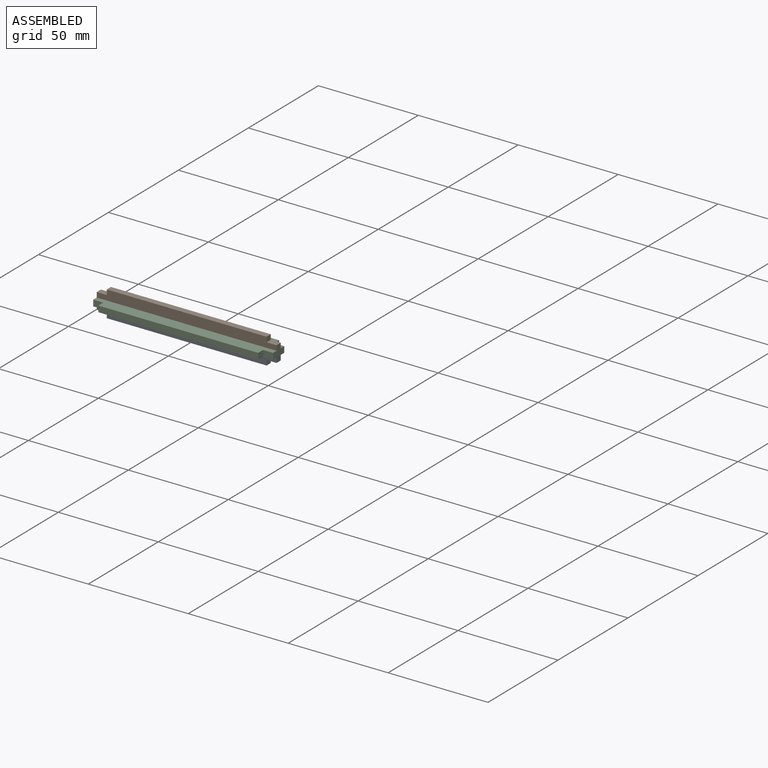
[diagram: assembled view]
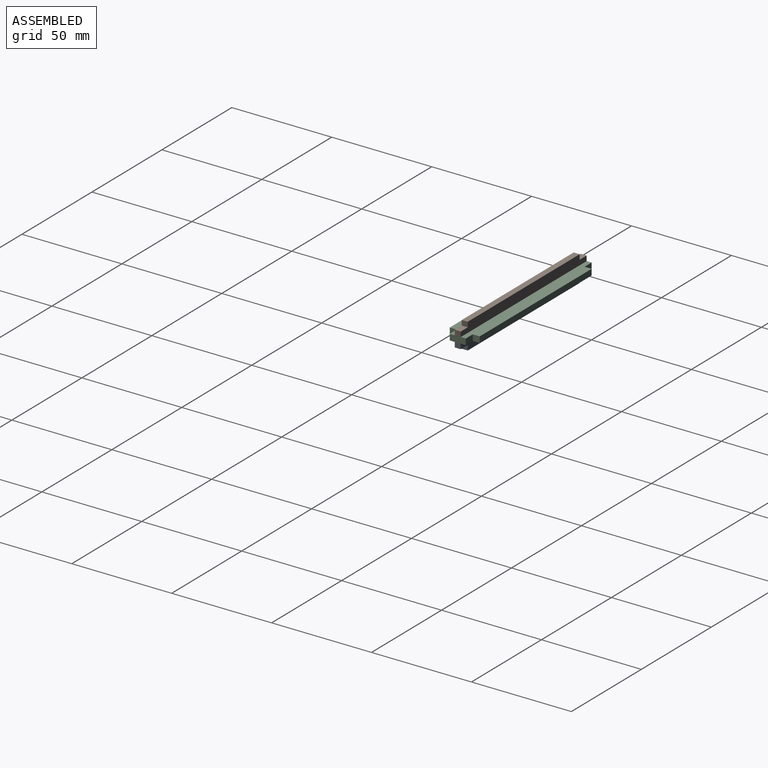
[diagram: assembled view, second angle]
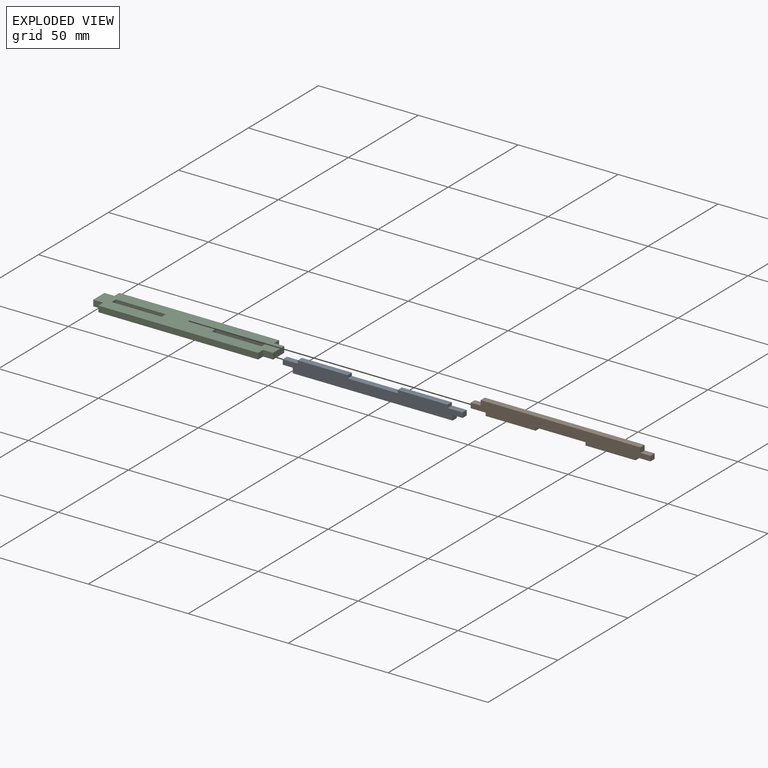
[diagram: exploded view]
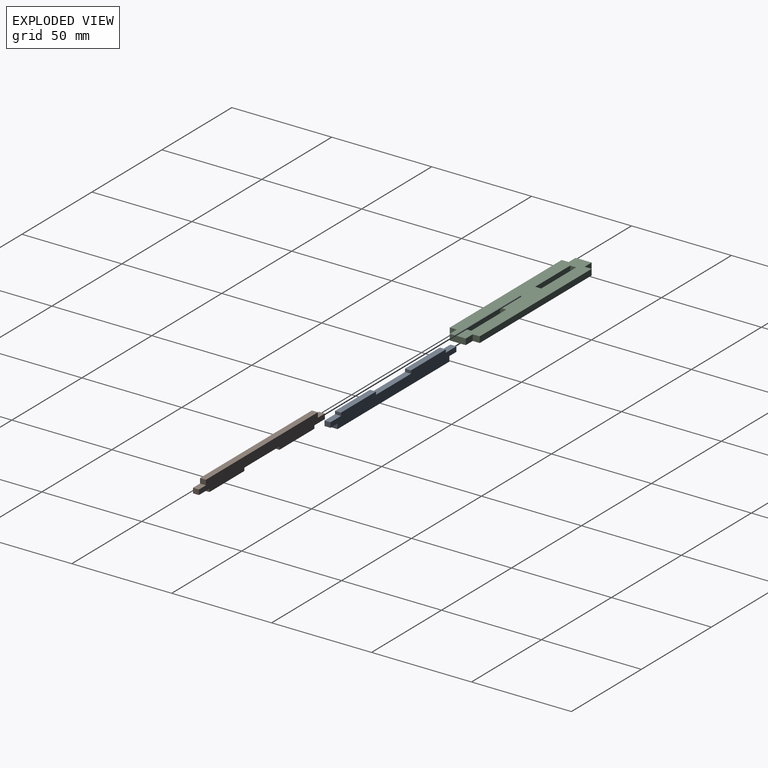
[diagram: exploded view, second angle]
ASSEMBLY  parts=3 mates=2
PART A: 18 faces, bbox 90x6.5x3 mm
  f0: plane 3x1.5mm, normal (-1,0,0), area 4.5mm2, adj f1,f15,f16,f17
  f1: plane 25x3mm, normal (0,-1,0), area 75mm2, adj f0,f2,f16,f17
  f2: plane 3x1.5mm, normal (1,0,0), area 4.5mm2, adj f1,f3,f16,f17
  f3: plane 7.5x3mm, normal (0,-1,0), area 22.5mm2, adj f2,f4,f16,f17
  f4: plane 3x2.5mm, normal (1,0,0), area 7.5mm2, adj f3,f5,f16,f17
  f5: plane 5x3mm, normal (0,1,0), area 15mm2, adj f4,f6,f16,f17
  f6: plane 3x2.5mm, normal (1,0,0), area 7.5mm2, adj f5,f7,f16,f17
  f7: plane 80x3mm, normal (0,1,0), area 240mm2, adj f6,f8,f16,f17
  f8: plane 3x2.5mm, normal (-1,0,0), area 7.5mm2, adj f7,f9,f16,f17
  f9: plane 5x3mm, normal (0,1,0), area 15mm2, adj f8,f10,f16,f17
  f10: plane 3x2.5mm, normal (-1,0,0), area 7.5mm2, adj f9,f11,f16,f17
  f11: plane 7.5x3mm, normal (0,-1,0), area 22.5mm2, adj f10,f12,f16,f17
  f12: plane 3x1.5mm, normal (-1,0,0), area 4.5mm2, adj f11,f13,f16,f17
  f13: plane 25x3mm, normal (0,-1,0), area 75mm2, adj f12,f14,f16,f17
  f14: plane 3x1.5mm, normal (1,0,0), area 4.5mm2, adj f13,f15,f16,f17
  f15: plane 25x3mm, normal (0,-1,0), area 75mm2, adj f0,f14,f16,f17
  f16: plane 90x6.5mm, normal (0,0,1), area 500mm2, adj f0,f1,f2,f3,f4,f5,f6,f7
  f17: plane 90x6.5mm, normal (0,0,-1), area 500mm2, adj f0,f1,f2,f3,f4,f5,f6,f7
PART B: same geometry as A
PART C: 22 faces, bbox 90x15x3 mm
  f0: plane 25x3mm, normal (0,1,0), area 75mm2, adj f1,f19,f20,f21
  f1: plane 3x3mm, normal (1,0,0), area 9mm2, adj f0,f2,f20,f21
  f2: plane 25x3mm, normal (0,-1,0), area 75mm2, adj f1,f19,f20,f21
  f3: plane 25x3mm, normal (0,-1,0), area 75mm2, adj f4,f17,f20,f21
  f4: plane 3x3mm, normal (-1,0,0), area 9mm2, adj f3,f5,f20,f21
  f5: plane 25x3mm, normal (0,1,0), area 75mm2, adj f4,f17,f20,f21
  f6: plane 5x3mm, normal (0,-1,0), area 15mm2, adj f7,f18,f20,f21
  f7: plane 3.5x3mm, normal (-1,0,0), area 10.5mm2, adj f6,f8,f20,f21
  f8: plane 80x3mm, normal (0,-1,0), area 240mm2, adj f7,f9,f20,f21
  f9: plane 3.5x3mm, normal (1,0,0), area 10.5mm2, adj f8,f10,f20,f21
  f10: plane 5x3mm, normal (0,-1,0), area 15mm2, adj f9,f11,f20,f21
  f11: plane 8x3mm, normal (1,0,0), area 24mm2, adj f10,f12,f20,f21
  f12: plane 5x3mm, normal (0,1,0), area 15mm2, adj f11,f13,f20,f21
  f13: plane 3.5x3mm, normal (1,0,0), area 10.5mm2, adj f12,f14,f20,f21
  f14: plane 80x3mm, normal (0,1,0), area 240mm2, adj f13,f15,f20,f21
  f15: plane 3.5x3mm, normal (-1,0,0), area 10.5mm2, adj f14,f16,f20,f21
  f16: plane 5x3mm, normal (0,1,0), area 15mm2, adj f15,f18,f20,f21
  f17: plane 3x3mm, normal (1,0,0), area 9mm2, adj f3,f5,f20,f21
  f18: plane 8x3mm, normal (-1,0,0), area 24mm2, adj f6,f16,f20,f21
  f19: plane 3x3mm, normal (-1,0,0), area 9mm2, adj f0,f2,f20,f21
  f20: plane 90x15mm, normal (0,0,1), area 1130mm2, adj f0,f1,f2,f3,f4,f5,f6,f7
  f21: plane 90x15mm, normal (0,0,-1), area 1130mm2, adj f0,f1,f2,f3,f4,f5,f6,f7
PLACE A rot(axis=(-1,0,0),90deg) t=(0,-36.9,-2.5)mm
PLACE B rot(axis=(1,0,0),90deg) t=(0,-33.9,5.5)mm
PLACE C t=(0,-35.4,0)mm
MATE fastened B.f14 <-> C.f19  axis (1,0,0) through (-12.5,-35.4,1.5)mm
MATE fastened A.f14 <-> C.f19  axis (1,0,0) through (-12.5,-35.4,1.5)mm
